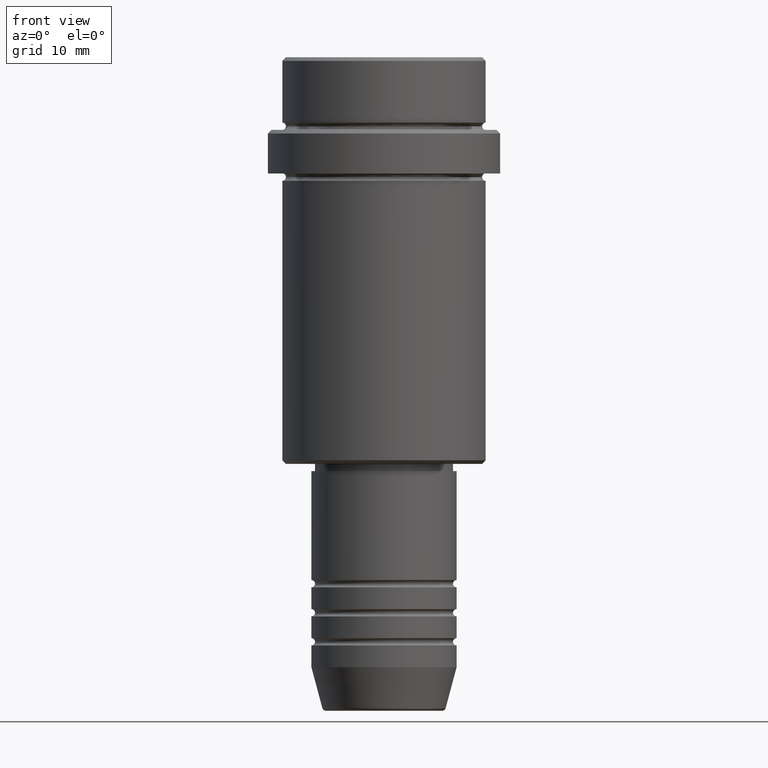
[diagram: clean part render]
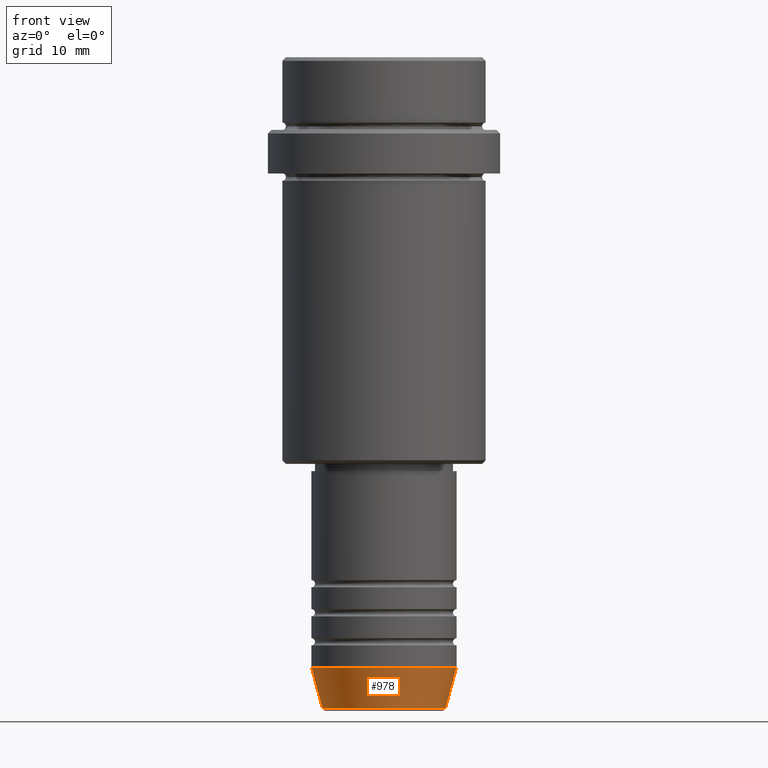
[diagram: same view with one face highlighted and labeled with its STEP entity id]
A machine part, front view. The second image highlights one B-rep face of the part: STEP entity #978.
In plain terms, the highlighted conical surface has half-angle 15 deg.
Its self-contained STEP definition (entity closure, byte-faithful):
#43 = DIRECTION ( 'NONE',  ( -0.000000000000000000, -0.000000000000000000, 1.000000000000000000 ) ) ;
#111 = EDGE_CURVE ( 'NONE', #787, #337, #1257, .T. ) ;
#121 = CIRCLE ( 'NONE', #689, 8.491604264568316296 ) ;
#136 = DIRECTION ( 'NONE',  ( 1.000000000000000000, 0.000000000000000000, 0.000000000000000000 ) ) ;
#142 = VECTOR ( 'NONE', #1377, 1000.000000000000114 ) ;
#231 = CARTESIAN_POINT ( 'NONE',  ( -10.00000000000000000, 1.224646799147353256E-15, -84.00000000000000000 ) ) ;
#266 = CONICAL_SURFACE ( 'NONE', #569, 10.00000000000000000, 0.2617993877991498519 ) ;
#270 = ORIENTED_EDGE ( 'NONE', *, *, #111, .F. ) ;
#300 = VERTEX_POINT ( 'NONE', #625 ) ;
#326 = CARTESIAN_POINT ( 'NONE',  ( 8.491604264568316296, 0.000000000000000000, -89.62940952255125637 ) ) ;
#337 = VERTEX_POINT ( 'NONE', #979 ) ;
#444 = CARTESIAN_POINT ( 'NONE',  ( 0.000000000000000000, 0.000000000000000000, -89.62940952255125637 ) ) ;
#482 = CARTESIAN_POINT ( 'NONE',  ( -8.491604264568316296, 1.132284198685156781E-15, -89.62940952255125637 ) ) ;
#569 = AXIS2_PLACEMENT_3D ( 'NONE', #696, #692, #1379 ) ;
#625 = CARTESIAN_POINT ( 'NONE',  ( 10.00000000000000000, 0.000000000000000000, -84.00000000000000000 ) ) ;
#671 = EDGE_CURVE ( 'NONE', #787, #693, #121, .T. ) ;
#689 = AXIS2_PLACEMENT_3D ( 'NONE', #444, #873, #1317 ) ;
#692 = DIRECTION ( 'NONE',  ( -0.000000000000000000, -0.000000000000000000, 1.000000000000000000 ) ) ;
#693 = VERTEX_POINT ( 'NONE', #326 ) ;
#696 = CARTESIAN_POINT ( 'NONE',  ( 0.000000000000000000, 0.000000000000000000, -84.00000000000000000 ) ) ;
#715 = CARTESIAN_POINT ( 'NONE',  ( 10.00000000000000000, 0.000000000000000000, -84.00000000000000000 ) ) ;
#721 = VECTOR ( 'NONE', #1029, 1000.000000000000114 ) ;
#787 = VERTEX_POINT ( 'NONE', #482 ) ;
#796 = FACE_OUTER_BOUND ( 'NONE', #1200, .T. ) ;
#859 = EDGE_CURVE ( 'NONE', #693, #300, #1267, .T. ) ;
#873 = DIRECTION ( 'NONE',  ( -0.000000000000000000, -0.000000000000000000, 1.000000000000000000 ) ) ;
#903 = ORIENTED_EDGE ( 'NONE', *, *, #671, .T. ) ;
#954 = ORIENTED_EDGE ( 'NONE', *, *, #859, .T. ) ;
#978 = ADVANCED_FACE ( 'NONE', ( #796 ), #266, .T. ) ;
#979 = CARTESIAN_POINT ( 'NONE',  ( -10.00000000000000000, 1.224646799147353256E-15, -84.00000000000000000 ) ) ;
#1029 = DIRECTION ( 'NONE',  ( -0.2588190451025211281, 3.169619151431769872E-17, 0.9659258262890680902 ) ) ;
#1116 = ORIENTED_EDGE ( 'NONE', *, *, #1227, .F. ) ;
#1200 = EDGE_LOOP ( 'NONE', ( #270, #903, #954, #1116 ) ) ;
#1227 = EDGE_CURVE ( 'NONE', #337, #300, #1352, .T. ) ;
#1246 = AXIS2_PLACEMENT_3D ( 'NONE', #1268, #43, #136 ) ;
#1257 = LINE ( 'NONE', #231, #721 ) ;
#1267 = LINE ( 'NONE', #715, #142 ) ;
#1268 = CARTESIAN_POINT ( 'NONE',  ( 0.000000000000000000, 0.000000000000000000, -84.00000000000000000 ) ) ;
#1317 = DIRECTION ( 'NONE',  ( 1.000000000000000000, 0.000000000000000000, 0.000000000000000000 ) ) ;
#1352 = CIRCLE ( 'NONE', #1246, 10.00000000000000000 ) ;
#1377 = DIRECTION ( 'NONE',  ( 0.2588190451025211281, 0.000000000000000000, 0.9659258262890680902 ) ) ;
#1379 = DIRECTION ( 'NONE',  ( 1.000000000000000000, 0.000000000000000000, 0.000000000000000000 ) ) ;